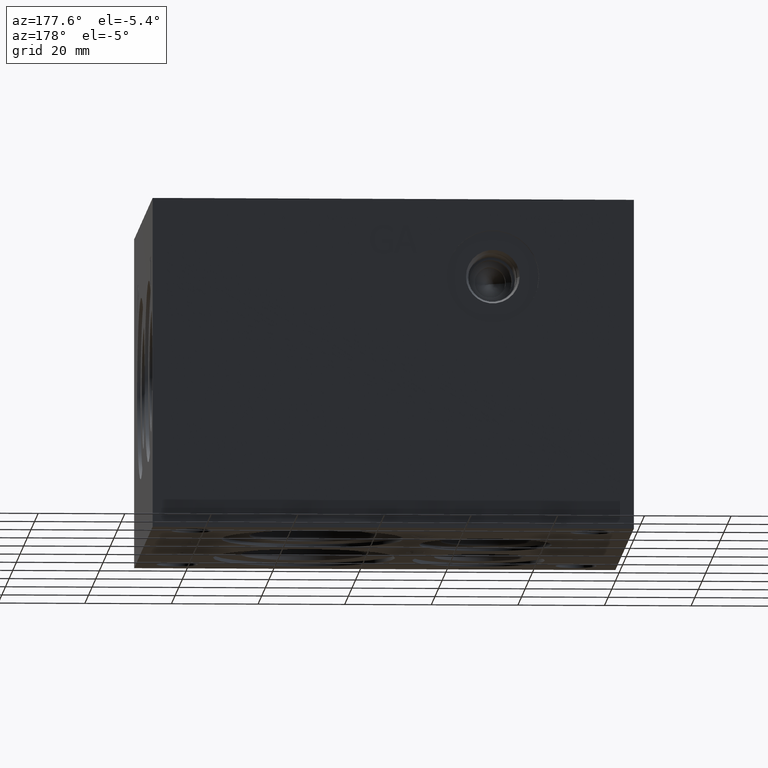
[diagram: clean part render]
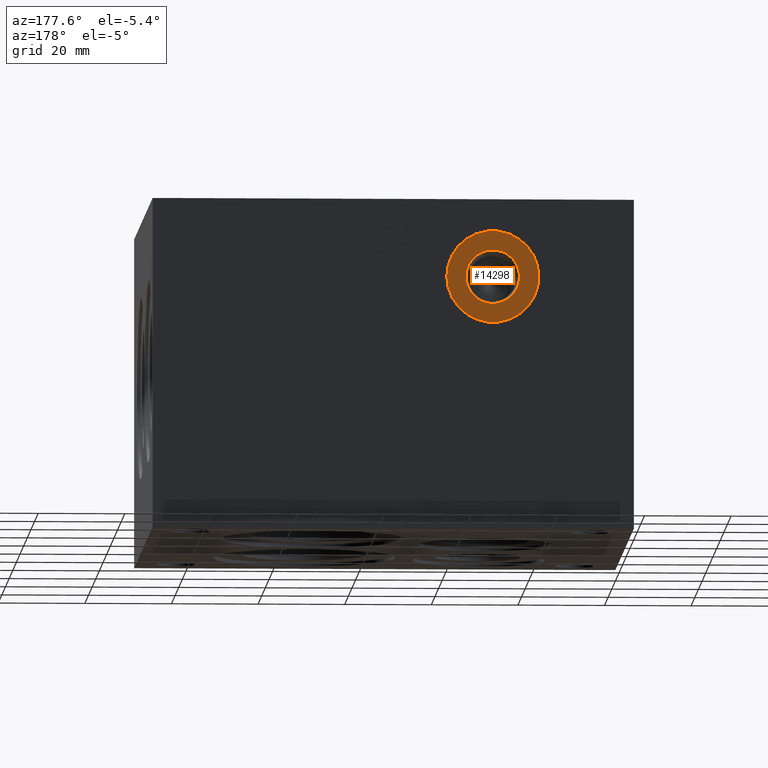
[diagram: same view with one face highlighted and labeled with its STEP entity id]
A machine part, auxiliary view. The second image highlights one B-rep face of the part: STEP entity #14298.
In plain terms, the highlighted planar face has unit normal (0, -1, 0).
Its self-contained STEP definition (entity closure, byte-faithful):
#411=CIRCLE('',#15109,10.6426);
#412=CIRCLE('',#15110,10.6426);
#413=CIRCLE('',#15112,6.1976);
#414=CIRCLE('',#15113,6.1976);
#513=FACE_BOUND('',#2485,.T.);
#916=PLANE('',#15111);
#1651=FACE_OUTER_BOUND('',#2484,.T.);
#2484=EDGE_LOOP('',(#12734,#12735));
#2485=EDGE_LOOP('',(#12736,#12737));
#6844=VERTEX_POINT('',#24813);
#6845=VERTEX_POINT('',#24815);
#6846=VERTEX_POINT('',#24819);
#6847=VERTEX_POINT('',#24820);
#8826=EDGE_CURVE('',#6844,#6845,#411,.T.);
#8827=EDGE_CURVE('',#6845,#6844,#412,.T.);
#8828=EDGE_CURVE('',#6846,#6847,#413,.T.);
#8829=EDGE_CURVE('',#6847,#6846,#414,.T.);
#12734=ORIENTED_EDGE('',*,*,#8827,.F.);
#12735=ORIENTED_EDGE('',*,*,#8826,.F.);
#12736=ORIENTED_EDGE('',*,*,#8828,.T.);
#12737=ORIENTED_EDGE('',*,*,#8829,.T.);
#14298=ADVANCED_FACE('',(#1651,#513),#916,.F.);
#15109=AXIS2_PLACEMENT_3D('',#24816,#17985,#17986);
#15110=AXIS2_PLACEMENT_3D('',#24817,#17987,#17988);
#15111=AXIS2_PLACEMENT_3D('',#24818,#17989,#17990);
#15112=AXIS2_PLACEMENT_3D('',#24821,#17991,#17992);
#15113=AXIS2_PLACEMENT_3D('',#24822,#17993,#17994);
#17985=DIRECTION('center_axis',(0.,-1.,0.));
#17986=DIRECTION('ref_axis',(1.,0.,0.));
#17987=DIRECTION('center_axis',(0.,-1.,0.));
#17988=DIRECTION('ref_axis',(1.,0.,0.));
#17989=DIRECTION('center_axis',(0.,-1.,0.));
#17990=DIRECTION('ref_axis',(0.,0.,-1.));
#17991=DIRECTION('center_axis',(0.,-1.,0.));
#17992=DIRECTION('ref_axis',(1.,0.,0.));
#17993=DIRECTION('center_axis',(0.,-1.,0.));
#17994=DIRECTION('ref_axis',(1.,0.,0.));
#24813=CARTESIAN_POINT('',(21.8948,100.8126,58.3438));
#24815=CARTESIAN_POINT('',(43.18,100.8126,58.3438));
#24816=CARTESIAN_POINT('Origin',(32.5374,100.8126,58.3438));
#24817=CARTESIAN_POINT('Origin',(32.5374,100.8126,58.3438));
#24818=CARTESIAN_POINT('Origin',(38.735,100.8126,58.3438));
#24819=CARTESIAN_POINT('',(38.735,100.8126,58.3438));
#24820=CARTESIAN_POINT('',(26.3398,100.8126,58.3438));
#24821=CARTESIAN_POINT('Origin',(32.5374,100.8126,58.3438));
#24822=CARTESIAN_POINT('Origin',(32.5374,100.8126,58.3438));